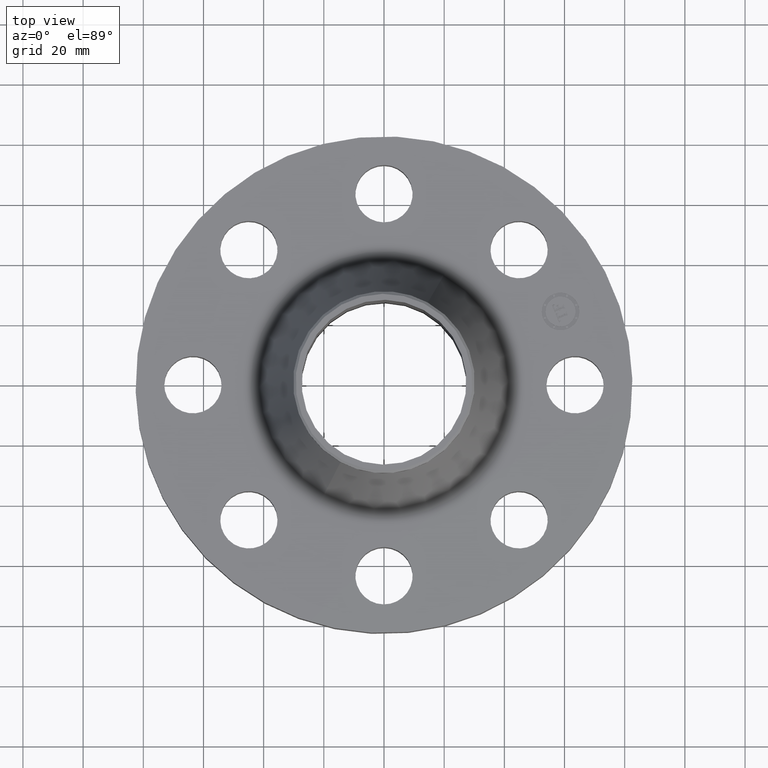
[diagram: clean part render]
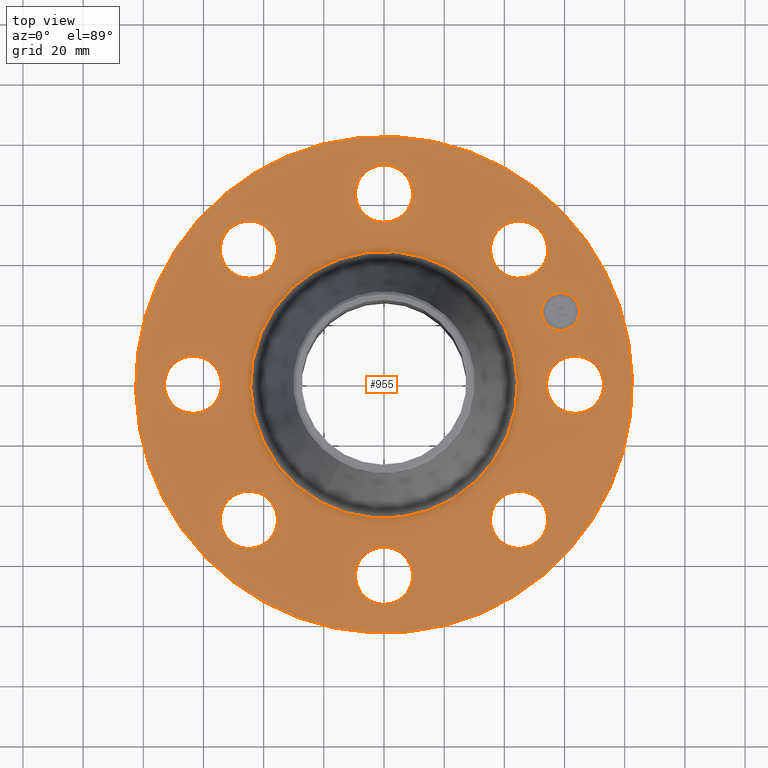
[diagram: same view with one face highlighted and labeled with its STEP entity id]
A machine part, top view. The second image highlights one B-rep face of the part: STEP entity #955.
In plain terms, the highlighted planar face has unit normal (0, 0, -1).
Its self-contained STEP definition (entity closure, byte-faithful):
#65=AXIS2_PLACEMENT_3D('Circle Axis2P3D',#63,#64,$) ;
#82=AXIS2_PLACEMENT_3D('Circle Axis2P3D',#80,#81,$) ;
#115=AXIS2_PLACEMENT_3D('Circle Axis2P3D',#113,#114,$) ;
#139=AXIS2_PLACEMENT_3D('Circle Axis2P3D',#137,#138,$) ;
#156=AXIS2_PLACEMENT_3D('Circle Axis2P3D',#154,#155,$) ;
#191=AXIS2_PLACEMENT_3D('Circle Axis2P3D',#189,#190,$) ;
#612=AXIS2_PLACEMENT_3D('Circle Axis2P3D',#610,#611,$) ;
#624=AXIS2_PLACEMENT_3D('Circle Axis2P3D',#622,#623,$) ;
#655=AXIS2_PLACEMENT_3D('Circle Axis2P3D',#653,#654,$) ;
#667=AXIS2_PLACEMENT_3D('Circle Axis2P3D',#665,#666,$) ;
#698=AXIS2_PLACEMENT_3D('Circle Axis2P3D',#696,#697,$) ;
#710=AXIS2_PLACEMENT_3D('Circle Axis2P3D',#708,#709,$) ;
#741=AXIS2_PLACEMENT_3D('Circle Axis2P3D',#739,#740,$) ;
#753=AXIS2_PLACEMENT_3D('Circle Axis2P3D',#751,#752,$) ;
#784=AXIS2_PLACEMENT_3D('Circle Axis2P3D',#782,#783,$) ;
#796=AXIS2_PLACEMENT_3D('Circle Axis2P3D',#794,#795,$) ;
#827=AXIS2_PLACEMENT_3D('Circle Axis2P3D',#825,#826,$) ;
#839=AXIS2_PLACEMENT_3D('Circle Axis2P3D',#837,#838,$) ;
#870=AXIS2_PLACEMENT_3D('Circle Axis2P3D',#868,#869,$) ;
#882=AXIS2_PLACEMENT_3D('Circle Axis2P3D',#880,#881,$) ;
#895=AXIS2_PLACEMENT_3D('Plane Axis2P3D',#892,#893,#894) ;
#939=AXIS2_PLACEMENT_3D('Circle Axis2P3D',#937,#938,$) ;
#948=AXIS2_PLACEMENT_3D('Circle Axis2P3D',#946,#947,$) ;
#46=CARTESIAN_POINT('Vertex',(2.1709065393,0.179784576977,0.810000000003)) ;
#60=CARTESIAN_POINT('Vertex',(2.82909346072,-0.179784576977,0.810000000003)) ;
#63=CARTESIAN_POINT('Axis2P3D Location',(2.50000000001,0.,0.810000000003)) ;
#80=CARTESIAN_POINT('Axis2P3D Location',(2.50000000001,0.,0.810000000003)) ;
#110=CARTESIAN_POINT('Vertex',(-1.55813300047,-2.85214332616,0.810000000003)) ;
#113=CARTESIAN_POINT('Axis2P3D Location',(0.,0.,0.810000000003)) ;
#117=CARTESIAN_POINT('Vertex',(1.55813300047,2.85214332616,0.810000000003)) ;
#137=CARTESIAN_POINT('Axis2P3D Location',(0.,0.,0.810000000003)) ;
#154=CARTESIAN_POINT('Axis2P3D Location',(0.,0.,0.810000000003)) ;
#158=CARTESIAN_POINT('Vertex',(0.836779850784,1.53171524264,0.810000000003)) ;
#160=CARTESIAN_POINT('Vertex',(-0.836779850784,-1.53171524264,0.810000000003)) ;
#189=CARTESIAN_POINT('Axis2P3D Location',(0.,0.,0.810000000003)) ;
#600=CARTESIAN_POINT('Vertex',(-1.66218962879,1.40793584173,0.810000000003)) ;
#607=CARTESIAN_POINT('Vertex',(-1.87334427715,2.12759806422,0.810000000003)) ;
#610=CARTESIAN_POINT('Axis2P3D Location',(-1.76776695297,1.76776695297,0.810000000003)) ;
#622=CARTESIAN_POINT('Axis2P3D Location',(-1.76776695297,1.76776695297,0.810000000003)) ;
#643=CARTESIAN_POINT('Vertex',(0.179784576977,-2.1709065393,0.810000000003)) ;
#650=CARTESIAN_POINT('Vertex',(-0.179784576977,-2.82909346072,0.810000000003)) ;
#653=CARTESIAN_POINT('Axis2P3D Location',(1.53080849894E-016,-2.50000000001,0.810000000003)) ;
#665=CARTESIAN_POINT('Axis2P3D Location',(1.53080849894E-016,-2.50000000001,0.810000000003)) ;
#686=CARTESIAN_POINT('Vertex',(-0.179784576977,2.1709065393,0.810000000003)) ;
#693=CARTESIAN_POINT('Vertex',(0.179784576977,2.82909346072,0.810000000003)) ;
#696=CARTESIAN_POINT('Axis2P3D Location',(-4.59242549682E-016,2.50000000001,0.810000000003)) ;
#708=CARTESIAN_POINT('Axis2P3D Location',(-4.59242549682E-016,2.50000000001,0.810000000003)) ;
#729=CARTESIAN_POINT('Vertex',(-1.40793584173,-1.66218962879,0.810000000003)) ;
#736=CARTESIAN_POINT('Vertex',(-2.12759806422,-1.87334427715,0.810000000003)) ;
#739=CARTESIAN_POINT('Axis2P3D Location',(-1.76776695297,-1.76776695297,0.810000000003)) ;
#751=CARTESIAN_POINT('Axis2P3D Location',(-1.76776695297,-1.76776695297,0.810000000003)) ;
#772=CARTESIAN_POINT('Vertex',(1.40793584173,1.66218962879,0.810000000003)) ;
#779=CARTESIAN_POINT('Vertex',(2.12759806422,1.87334427715,0.810000000003)) ;
#782=CARTESIAN_POINT('Axis2P3D Location',(1.76776695297,1.76776695297,0.810000000003)) ;
#794=CARTESIAN_POINT('Axis2P3D Location',(1.76776695297,1.76776695297,0.810000000003)) ;
#815=CARTESIAN_POINT('Vertex',(-2.1709065393,-0.179784576977,0.810000000003)) ;
#822=CARTESIAN_POINT('Vertex',(-2.82909346072,0.179784576977,0.810000000003)) ;
#825=CARTESIAN_POINT('Axis2P3D Location',(-2.50000000001,-3.06161699788E-016,0.810000000003)) ;
#837=CARTESIAN_POINT('Axis2P3D Location',(-2.50000000001,-3.06161699788E-016,0.810000000003)) ;
#858=CARTESIAN_POINT('Vertex',(1.66218962879,-1.40793584173,0.810000000003)) ;
#865=CARTESIAN_POINT('Vertex',(1.87334427715,-2.12759806422,0.810000000003)) ;
#868=CARTESIAN_POINT('Axis2P3D Location',(1.76776695297,-1.76776695297,0.810000000003)) ;
#880=CARTESIAN_POINT('Axis2P3D Location',(1.76776695297,-1.76776695297,0.810000000003)) ;
#892=CARTESIAN_POINT('Axis2P3D Location',(0.,3.25000000001,0.810000000003)) ;
#937=CARTESIAN_POINT('Axis2P3D Location',(2.30969883129,0.956708580917,0.810000000003)) ;
#941=CARTESIAN_POINT('Vertex',(2.21498468178,1.18536876521,0.810000000003)) ;
#943=CARTESIAN_POINT('Vertex',(2.4044129808,0.728048396619,0.810000000003)) ;
#946=CARTESIAN_POINT('Axis2P3D Location',(2.30969883129,0.956708580917,0.810000000003)) ;
#64=DIRECTION('Axis2P3D Direction',(0.,-0.,-0.0393700787402)) ;
#81=DIRECTION('Axis2P3D Direction',(0.,-0.,-0.0393700787402)) ;
#114=DIRECTION('Axis2P3D Direction',(0.,0.,-0.0393700787402)) ;
#138=DIRECTION('Axis2P3D Direction',(0.,0.,-0.0393700787402)) ;
#155=DIRECTION('Axis2P3D Direction',(0.,0.,-0.0393700787402)) ;
#190=DIRECTION('Axis2P3D Direction',(0.,0.,-0.0393700787402)) ;
#611=DIRECTION('Axis2P3D Direction',(0.,0.,-0.0393700787402)) ;
#623=DIRECTION('Axis2P3D Direction',(0.,0.,-0.0393700787402)) ;
#654=DIRECTION('Axis2P3D Direction',(0.,-0.,-0.0393700787402)) ;
#666=DIRECTION('Axis2P3D Direction',(0.,-0.,-0.0393700787402)) ;
#697=DIRECTION('Axis2P3D Direction',(0.,0.,-0.0393700787402)) ;
#709=DIRECTION('Axis2P3D Direction',(0.,0.,-0.0393700787402)) ;
#740=DIRECTION('Axis2P3D Direction',(-0.,0.,-0.0393700787402)) ;
#752=DIRECTION('Axis2P3D Direction',(-0.,0.,-0.0393700787402)) ;
#783=DIRECTION('Axis2P3D Direction',(0.,0.,-0.0393700787402)) ;
#795=DIRECTION('Axis2P3D Direction',(0.,0.,-0.0393700787402)) ;
#826=DIRECTION('Axis2P3D Direction',(-0.,0.,-0.0393700787402)) ;
#838=DIRECTION('Axis2P3D Direction',(-0.,0.,-0.0393700787402)) ;
#869=DIRECTION('Axis2P3D Direction',(0.,-0.,-0.0393700787402)) ;
#881=DIRECTION('Axis2P3D Direction',(0.,-0.,-0.0393700787402)) ;
#893=DIRECTION('Axis2P3D Direction',(0.,0.,-0.0393700787402)) ;
#894=DIRECTION('Axis2P3D XDirection',(0.0393700787402,0.,0.)) ;
#938=DIRECTION('Axis2P3D Direction',(0.,0.,-0.0393700787402)) ;
#947=DIRECTION('Axis2P3D Direction',(0.,0.,-0.0393700787402)) ;
#898=ORIENTED_EDGE('',*,*,#141,.F.) ;
#899=ORIENTED_EDGE('',*,*,#119,.F.) ;
#902=ORIENTED_EDGE('',*,*,#67,.T.) ;
#903=ORIENTED_EDGE('',*,*,#84,.T.) ;
#906=ORIENTED_EDGE('',*,*,#193,.T.) ;
#907=ORIENTED_EDGE('',*,*,#162,.T.) ;
#910=ORIENTED_EDGE('',*,*,#884,.T.) ;
#911=ORIENTED_EDGE('',*,*,#872,.T.) ;
#914=ORIENTED_EDGE('',*,*,#669,.T.) ;
#915=ORIENTED_EDGE('',*,*,#657,.T.) ;
#918=ORIENTED_EDGE('',*,*,#755,.T.) ;
#919=ORIENTED_EDGE('',*,*,#743,.T.) ;
#922=ORIENTED_EDGE('',*,*,#841,.T.) ;
#923=ORIENTED_EDGE('',*,*,#829,.T.) ;
#926=ORIENTED_EDGE('',*,*,#626,.T.) ;
#927=ORIENTED_EDGE('',*,*,#614,.T.) ;
#930=ORIENTED_EDGE('',*,*,#712,.T.) ;
#931=ORIENTED_EDGE('',*,*,#700,.T.) ;
#934=ORIENTED_EDGE('',*,*,#798,.T.) ;
#935=ORIENTED_EDGE('',*,*,#786,.T.) ;
#952=ORIENTED_EDGE('',*,*,#945,.T.) ;
#953=ORIENTED_EDGE('',*,*,#950,.T.) ;
#904=FACE_BOUND('',#901,.T.) ;
#908=FACE_BOUND('',#905,.T.) ;
#912=FACE_BOUND('',#909,.T.) ;
#916=FACE_BOUND('',#913,.T.) ;
#920=FACE_BOUND('',#917,.T.) ;
#924=FACE_BOUND('',#921,.T.) ;
#928=FACE_BOUND('',#925,.T.) ;
#932=FACE_BOUND('',#929,.T.) ;
#936=FACE_BOUND('',#933,.T.) ;
#954=FACE_BOUND('',#951,.T.) ;
#955=ADVANCED_FACE('PartBody',(#900,#904,#908,#912,#916,#920,#924,#928,#932,#936,#954),#896,.F.) ;
#66=CIRCLE('generated circle',#65,0.375000000002) ;
#83=CIRCLE('generated circle',#82,0.375000000002) ;
#116=CIRCLE('generated circle',#115,3.25000000001) ;
#140=CIRCLE('generated circle',#139,3.25000000001) ;
#157=CIRCLE('generated circle',#156,1.74538021737) ;
#192=CIRCLE('generated circle',#191,1.74538021737) ;
#613=CIRCLE('generated circle',#612,0.375000000001) ;
#625=CIRCLE('generated circle',#624,0.375000000001) ;
#656=CIRCLE('generated circle',#655,0.375000000002) ;
#668=CIRCLE('generated circle',#667,0.375000000002) ;
#699=CIRCLE('generated circle',#698,0.375000000002) ;
#711=CIRCLE('generated circle',#710,0.375000000002) ;
#742=CIRCLE('generated circle',#741,0.375000000001) ;
#754=CIRCLE('generated circle',#753,0.375000000001) ;
#785=CIRCLE('generated circle',#784,0.375000000001) ;
#797=CIRCLE('generated circle',#796,0.375000000001) ;
#828=CIRCLE('generated circle',#827,0.375000000001) ;
#840=CIRCLE('generated circle',#839,0.375000000001) ;
#871=CIRCLE('generated circle',#870,0.375000000001) ;
#883=CIRCLE('generated circle',#882,0.375000000001) ;
#940=CIRCLE('generated circle',#939,0.247500000001) ;
#949=CIRCLE('generated circle',#948,0.247500000001) ;
#67=EDGE_CURVE('',#47,#61,#66,.T.) ;
#84=EDGE_CURVE('',#61,#47,#83,.T.) ;
#119=EDGE_CURVE('',#111,#118,#116,.T.) ;
#141=EDGE_CURVE('',#118,#111,#140,.T.) ;
#162=EDGE_CURVE('',#159,#161,#157,.T.) ;
#193=EDGE_CURVE('',#161,#159,#192,.T.) ;
#614=EDGE_CURVE('',#601,#608,#613,.T.) ;
#626=EDGE_CURVE('',#608,#601,#625,.T.) ;
#657=EDGE_CURVE('',#644,#651,#656,.T.) ;
#669=EDGE_CURVE('',#651,#644,#668,.T.) ;
#700=EDGE_CURVE('',#687,#694,#699,.T.) ;
#712=EDGE_CURVE('',#694,#687,#711,.T.) ;
#743=EDGE_CURVE('',#730,#737,#742,.T.) ;
#755=EDGE_CURVE('',#737,#730,#754,.T.) ;
#786=EDGE_CURVE('',#773,#780,#785,.T.) ;
#798=EDGE_CURVE('',#780,#773,#797,.T.) ;
#829=EDGE_CURVE('',#816,#823,#828,.T.) ;
#841=EDGE_CURVE('',#823,#816,#840,.T.) ;
#872=EDGE_CURVE('',#859,#866,#871,.T.) ;
#884=EDGE_CURVE('',#866,#859,#883,.T.) ;
#945=EDGE_CURVE('',#942,#944,#940,.T.) ;
#950=EDGE_CURVE('',#944,#942,#949,.T.) ;
#897=EDGE_LOOP('',(#898,#899)) ;
#901=EDGE_LOOP('',(#902,#903)) ;
#905=EDGE_LOOP('',(#906,#907)) ;
#909=EDGE_LOOP('',(#910,#911)) ;
#913=EDGE_LOOP('',(#914,#915)) ;
#917=EDGE_LOOP('',(#918,#919)) ;
#921=EDGE_LOOP('',(#922,#923)) ;
#925=EDGE_LOOP('',(#926,#927)) ;
#929=EDGE_LOOP('',(#930,#931)) ;
#933=EDGE_LOOP('',(#934,#935)) ;
#951=EDGE_LOOP('',(#952,#953)) ;
#900=FACE_OUTER_BOUND('',#897,.T.) ;
#896=PLANE('',#895) ;
#47=VERTEX_POINT('',#46) ;
#61=VERTEX_POINT('',#60) ;
#111=VERTEX_POINT('',#110) ;
#118=VERTEX_POINT('',#117) ;
#159=VERTEX_POINT('',#158) ;
#161=VERTEX_POINT('',#160) ;
#601=VERTEX_POINT('',#600) ;
#608=VERTEX_POINT('',#607) ;
#644=VERTEX_POINT('',#643) ;
#651=VERTEX_POINT('',#650) ;
#687=VERTEX_POINT('',#686) ;
#694=VERTEX_POINT('',#693) ;
#730=VERTEX_POINT('',#729) ;
#737=VERTEX_POINT('',#736) ;
#773=VERTEX_POINT('',#772) ;
#780=VERTEX_POINT('',#779) ;
#816=VERTEX_POINT('',#815) ;
#823=VERTEX_POINT('',#822) ;
#859=VERTEX_POINT('',#858) ;
#866=VERTEX_POINT('',#865) ;
#942=VERTEX_POINT('',#941) ;
#944=VERTEX_POINT('',#943) ;